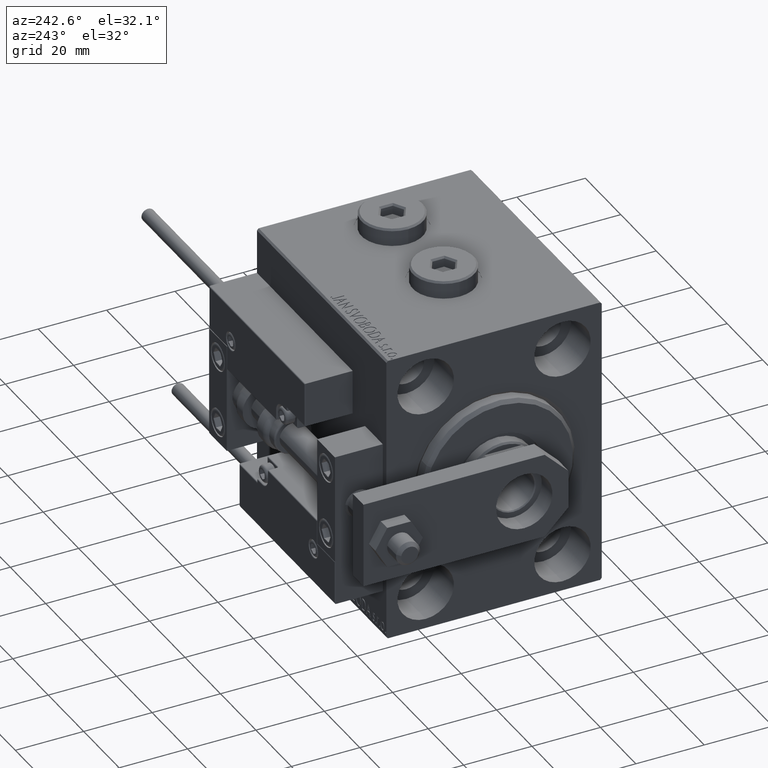
[diagram: clean part render]
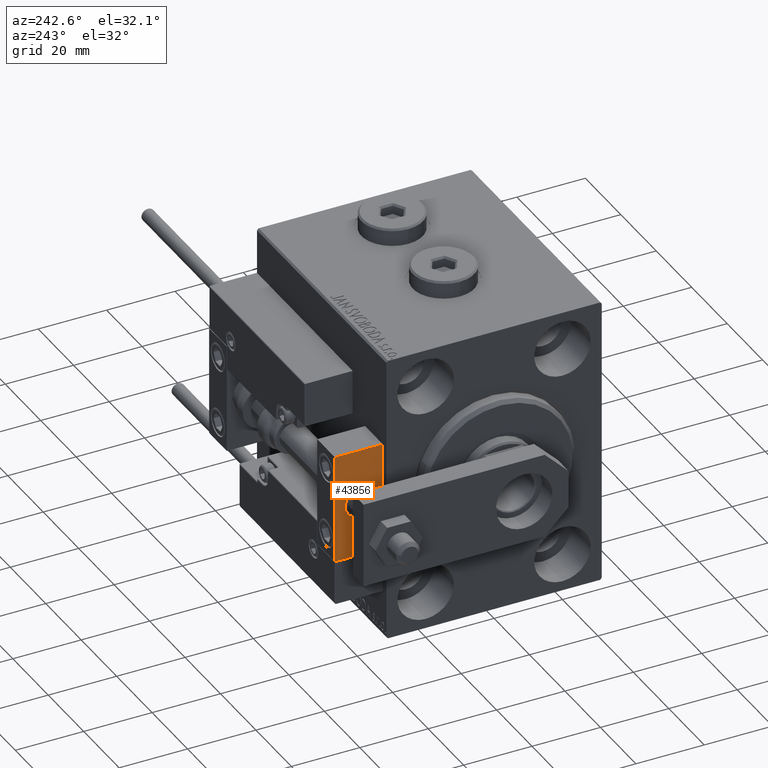
[diagram: same view with one face highlighted and labeled with its STEP entity id]
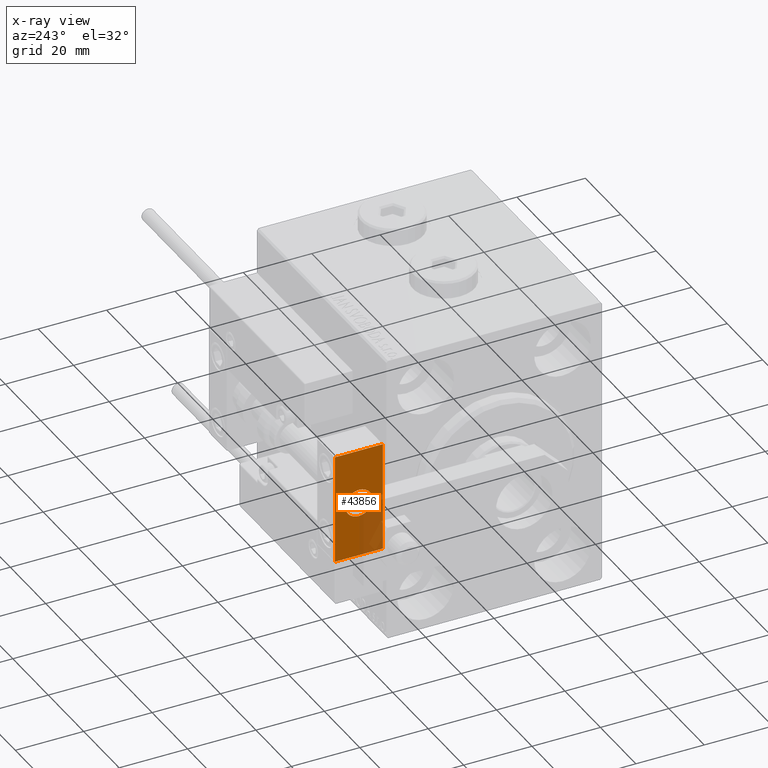
[diagram: x-ray of the same camera — body ghosted, the highlighted face saturated]
A machine part, auxiliary view. The second image highlights one B-rep face of the part: STEP entity #43856.
The next image is the same camera in x-ray: the body ghosted, the highlighted face saturated — about 25% of this face is hidden behind the body in this view.
In plain terms, the highlighted planar face has unit normal (1, 0, -0).
Its self-contained STEP definition (entity closure, byte-faithful):
#109 = EDGE_CURVE ( 'NONE', #5354, #37720, #38521, .T. ) ;
#2798 = CARTESIAN_POINT ( 'NONE',  ( 10.00000000000000000, 4.898587196589412829E-16, -4.000000000000000000 ) ) ;
#2885 = DIRECTION ( 'NONE',  ( 0.000000000000000000, -1.000000000000000000, 0.000000000000000000 ) ) ;
#3449 = VECTOR ( 'NONE', #9374, 1000.000000000000000 ) ;
#3593 = FACE_OUTER_BOUND ( 'NONE', #45928, .T. ) ;
#3619 = DIRECTION ( 'NONE',  ( 0.000000000000000000, 0.000000000000000000, 1.000000000000000000 ) ) ;
#4035 = CARTESIAN_POINT ( 'NONE',  ( 10.00000000000000000, -7.000000000000000000, 15.99999999999999289 ) ) ;
#5354 = VERTEX_POINT ( 'NONE', #41406 ) ;
#5491 = CARTESIAN_POINT ( 'NONE',  ( 10.00000000000000000, 7.000000000000000000, 15.99999999999999289 ) ) ;
#5835 = VECTOR ( 'NONE', #34957, 1000.000000000000000 ) ;
#7515 = ORIENTED_EDGE ( 'NONE', *, *, #31342, .T. ) ;
#7530 = DIRECTION ( 'NONE',  ( -1.000000000000000000, 0.000000000000000000, 0.000000000000000000 ) ) ;
#8047 = EDGE_LOOP ( 'NONE', ( #23101, #44860 ) ) ;
#8614 = VERTEX_POINT ( 'NONE', #26051 ) ;
#8902 = VECTOR ( 'NONE', #22827, 1000.000000000000000 ) ;
#9374 = DIRECTION ( 'NONE',  ( 0.000000000000000000, 0.000000000000000000, -1.000000000000000000 ) ) ;
#10294 = DIRECTION ( 'NONE',  ( -1.000000000000000000, 0.000000000000000000, 0.000000000000000000 ) ) ;
#10668 = ORIENTED_EDGE ( 'NONE', *, *, #20291, .F. ) ;
#11125 = CARTESIAN_POINT ( 'NONE',  ( 10.00000000000000000, 7.000000000000000000, -16.00000000000000711 ) ) ;
#11389 = PLANE ( 'NONE',  #27660 ) ;
#12162 = DIRECTION ( 'NONE',  ( -0.000000000000000000, 0.000000000000000000, 1.000000000000000000 ) ) ;
#12313 = VERTEX_POINT ( 'NONE', #21977 ) ;
#18724 = EDGE_CURVE ( 'NONE', #34205, #26893, #22644, .T. ) ;
#19732 = AXIS2_PLACEMENT_3D ( 'NONE', #43090, #7530, #3619 ) ;
#20204 = DIRECTION ( 'NONE',  ( -1.000000000000000000, 0.000000000000000000, -0.000000000000000000 ) ) ;
#20291 = EDGE_CURVE ( 'NONE', #12313, #8614, #27496, .T. ) ;
#21787 = CARTESIAN_POINT ( 'NONE',  ( 10.00000000000000000, -7.000000000000000000, 15.99999999999999289 ) ) ;
#21977 = CARTESIAN_POINT ( 'NONE',  ( 10.00000000000000000, 7.000000000000000000, -16.00000000000000711 ) ) ;
#22644 = LINE ( 'NONE', #38463, #47803 ) ;
#22827 = DIRECTION ( 'NONE',  ( 0.000000000000000000, -1.000000000000000000, 0.000000000000000000 ) ) ;
#23101 = ORIENTED_EDGE ( 'NONE', *, *, #109, .T. ) ;
#25188 = EDGE_CURVE ( 'NONE', #37720, #5354, #48735, .T. ) ;
#26051 = CARTESIAN_POINT ( 'NONE',  ( 10.00000000000000000, -7.000000000000000000, -16.00000000000000711 ) ) ;
#26893 = VERTEX_POINT ( 'NONE', #21787 ) ;
#27496 = LINE ( 'NONE', #11125, #8902 ) ;
#27660 = AXIS2_PLACEMENT_3D ( 'NONE', #39166, #20204, #12162 ) ;
#28198 = LINE ( 'NONE', #4035, #5835 ) ;
#31342 = EDGE_CURVE ( 'NONE', #26893, #8614, #28198, .T. ) ;
#33964 = ORIENTED_EDGE ( 'NONE', *, *, #18724, .T. ) ;
#34145 = EDGE_CURVE ( 'NONE', #34205, #12313, #48320, .T. ) ;
#34205 = VERTEX_POINT ( 'NONE', #39212 ) ;
#34710 = CARTESIAN_POINT ( 'NONE',  ( 10.00000000000000000, 0.000000000000000000, 0.000000000000000000 ) ) ;
#34957 = DIRECTION ( 'NONE',  ( 0.000000000000000000, 0.000000000000000000, -1.000000000000000000 ) ) ;
#37566 = DIRECTION ( 'NONE',  ( 0.000000000000000000, 0.000000000000000000, 1.000000000000000000 ) ) ;
#37720 = VERTEX_POINT ( 'NONE', #2798 ) ;
#38463 = CARTESIAN_POINT ( 'NONE',  ( 10.00000000000000000, 7.000000000000000000, 15.99999999999999289 ) ) ;
#38521 = CIRCLE ( 'NONE', #49284, 4.000000000000000000 ) ;
#39166 = CARTESIAN_POINT ( 'NONE',  ( 10.00000000000000000, 0.000000000000000000, 0.000000000000000000 ) ) ;
#39212 = CARTESIAN_POINT ( 'NONE',  ( 10.00000000000000000, 7.000000000000000000, 15.99999999999999289 ) ) ;
#41406 = CARTESIAN_POINT ( 'NONE',  ( 10.00000000000000000, 0.000000000000000000, 4.000000000000000000 ) ) ;
#42902 = ORIENTED_EDGE ( 'NONE', *, *, #34145, .F. ) ;
#43090 = CARTESIAN_POINT ( 'NONE',  ( 10.00000000000000000, 0.000000000000000000, 0.000000000000000000 ) ) ;
#43856 = ADVANCED_FACE ( 'NONE', ( #47961, #3593 ), #11389, .F. ) ;
#44860 = ORIENTED_EDGE ( 'NONE', *, *, #25188, .T. ) ;
#45928 = EDGE_LOOP ( 'NONE', ( #7515, #10668, #42902, #33964 ) ) ;
#47803 = VECTOR ( 'NONE', #2885, 1000.000000000000000 ) ;
#47961 = FACE_BOUND ( 'NONE', #8047, .T. ) ;
#48320 = LINE ( 'NONE', #5491, #3449 ) ;
#48735 = CIRCLE ( 'NONE', #19732, 4.000000000000000000 ) ;
#49284 = AXIS2_PLACEMENT_3D ( 'NONE', #34710, #10294, #37566 ) ;